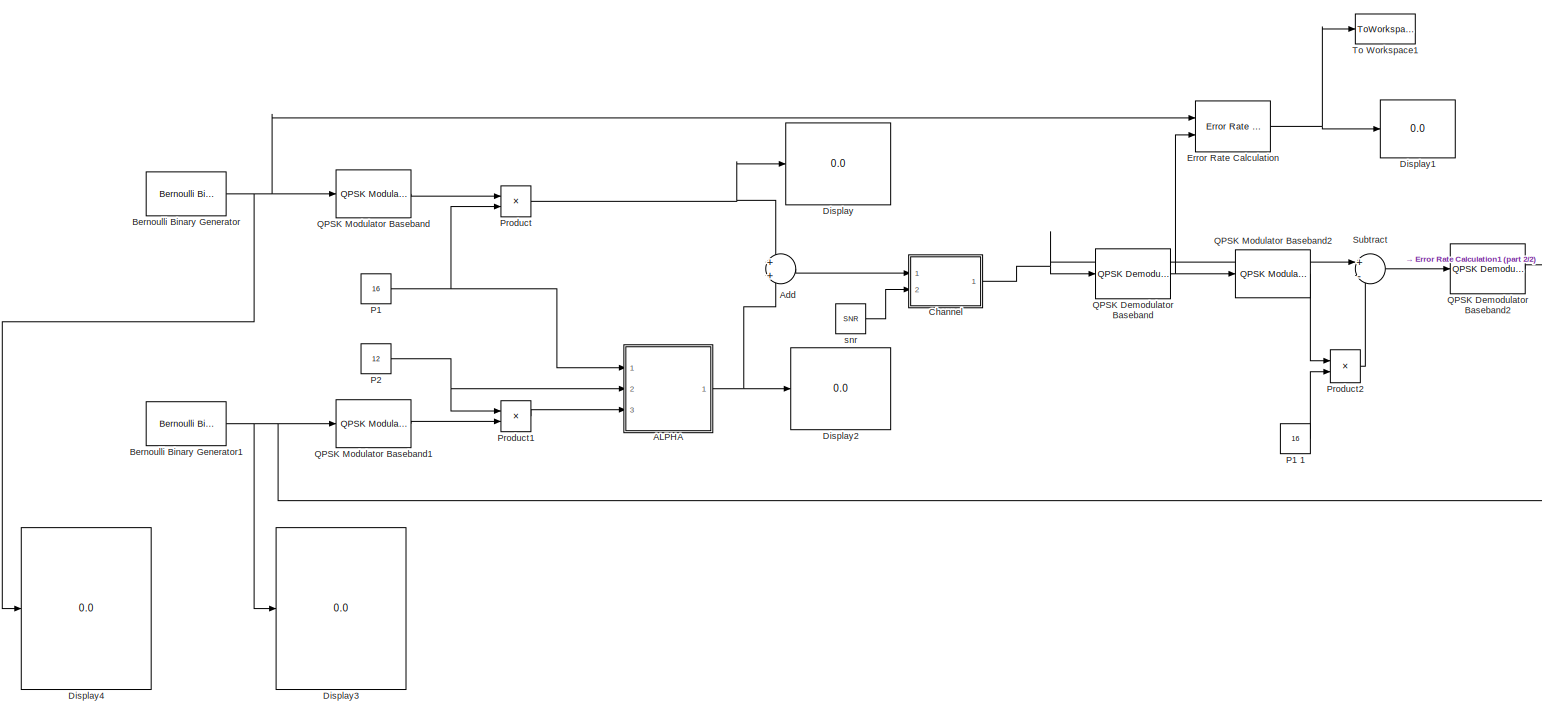
[diagram: root canvas - part 1/2, most of the canvas]
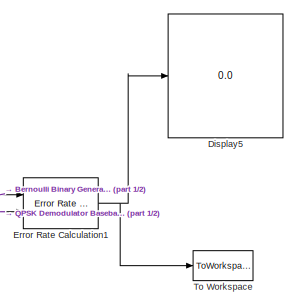
[diagram: root canvas - part 2/2, top right region]
MODEL slx_a5d9251261a1
KIND model
CONFIG AbsTol = auto
CONFIG EnableMultiTasking = on
CONFIG FixedStep = auto
CONFIG MaxStep = auto
CONFIG MinStep = auto
CONFIG RelTol = 1e-3
CONFIG SampleTimeConstraint = Unconstrained
CONFIG Solver = VariableStepAuto
CONFIG SolverName = VariableStepAuto
CONFIG StartTime = 0.0
CONFIG StopTime = 0
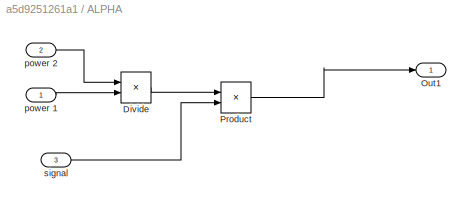
BLOCK [SubSystem] ALPHA 
  Ports = [3, 1]
  RequestExecContextInheritance = off
BLOCK [Product] ALPHA /Divide
  InputSameDT = off
  Inputs = */
  OutDataTypeStr = Inherit: Inherit via internal rule
  Ports = [2, 1]
  RndMeth = Floor
  SaturateOnIntegerOverflow = off
BLOCK [Outport] ALPHA /Out1
  IconDisplay = Port number
BLOCK [Product] ALPHA /Product
  InputSameDT = off
  OutDataTypeStr = Inherit: Inherit via internal rule
  Ports = [2, 1]
  RndMeth = Floor
  SaturateOnIntegerOverflow = off
BLOCK [Inport] ALPHA /power 1
  IconDisplay = Port number
BLOCK [Inport] ALPHA /power 2
  IconDisplay = Port number
  Port = 2
BLOCK [Inport] ALPHA /signal
  IconDisplay = Port number
  Port = 3
BLOCK [Sum] Add
  IconShape = round
  InputSameDT = off
  OutDataTypeStr = Inherit: Inherit via internal rule
  Ports = [2, 1]
  SaturateOnIntegerOverflow = off
BLOCK [Reference] Bernoulli Binary Generator  REF=commrandsrc3/Bernoulli Binary
Generator
  Ports = [0, 1]
  SourceBlock = commrandsrc3/Bernoulli Binary\nGenerator
  SourceProductBaseCode = CM
  SourceProductName = Communications Toolbox
  SourceType = Bernoulli Binary Generator
BLOCK [Reference] Bernoulli Binary Generator1  REF=commrandsrc3/Bernoulli Binary
Generator
  Ports = [0, 1]
  SourceBlock = commrandsrc3/Bernoulli Binary\nGenerator
  SourceProductBaseCode = CM
  SourceProductName = Communications Toolbox
  SourceType = Bernoulli Binary Generator
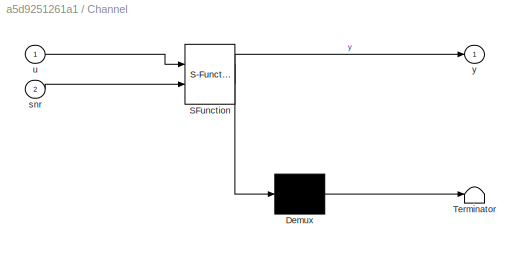
BLOCK [SubSystem] Channel 
  ErrorFcn = Stateflow.Translate.translate
  PermitHierarchicalResolution = ExplicitOnly
  Ports = [2, 1]
  RequestExecContextInheritance = off
  SFBlockType = MATLAB Function
  TreatAsAtomicUnit = on
BLOCK [Demux] Channel / Demux 
  Outputs = 1
  Ports = [1, 1]
BLOCK [S-Function] Channel / SFunction 
  EnableBusSupport = on
  FunctionName = sf_sfun
  PortCounts = [2 2]
  Ports = [2, 2]
  SFcnIsStateOwnerBlock = off
  SFunctionDeploymentMode = off
  Tag = Stateflow S-Function Power_test 4
BLOCK [Terminator] Channel / Terminator 
BLOCK [Inport] Channel /snr
  IconDisplay = Port number
  Port = 2
BLOCK [Inport] Channel /u
  IconDisplay = Port number
BLOCK [Outport] Channel /y
  IconDisplay = Port number
BLOCK [Display] Display
  Decimation = 1
  Ports = [1]
BLOCK [Display] Display1
  Decimation = 1
  Ports = [1]
BLOCK [Display] Display2
  Decimation = 1
  Ports = [1]
BLOCK [Display] Display3
  Decimation = 1
  Ports = [1]
BLOCK [Display] Display4
  Decimation = 1
  Ports = [1]
BLOCK [Display] Display5
  Decimation = 1
  Ports = [1]
BLOCK [Reference] Error Rate Calculation  REF=commsink2/Error Rate
Calculation
  Ports = [2, 1]
  SourceBlock = commsink2/Error Rate\nCalculation
  SourceProductBaseCode = CM
  SourceProductName = Communications Toolbox
  SourceType = Error Rate Calculation
BLOCK [Reference] Error Rate Calculation1  REF=commsink2/Error Rate
Calculation
  Ports = [2, 1]
  SourceBlock = commsink2/Error Rate\nCalculation
  SourceProductBaseCode = CM
  SourceProductName = Communications Toolbox
  SourceType = Error Rate Calculation
BLOCK [Constant] P1 
  Value = 16
BLOCK [Constant] P1 1
  Value = 16
BLOCK [Constant] P2
  Value = 12
BLOCK [Product] Product
  InputSameDT = off
  OutDataTypeStr = Inherit: Inherit via internal rule
  Ports = [2, 1]
  RndMeth = Floor
  SaturateOnIntegerOverflow = off
BLOCK [Product] Product1
  InputSameDT = off
  OutDataTypeStr = Inherit: Inherit via internal rule
  Ports = [2, 1]
  RndMeth = Floor
  SaturateOnIntegerOverflow = off
BLOCK [Product] Product2
  InputSameDT = off
  OutDataTypeStr = Inherit: Inherit via internal rule
  Ports = [2, 1]
  RndMeth = Floor
  SaturateOnIntegerOverflow = off
BLOCK [Reference] QPSK Demodulator Baseband  REF=commdigbbndpm3/QPSK
Demodulator
Baseband
  Ports = [1, 1]
  SourceBlock = commdigbbndpm3/QPSK\nDemodulator\nBaseband
  SourceProductBaseCode = CM
  SourceProductName = Communications Toolbox
  SourceType = QPSK Demodulator Baseband
BLOCK [Reference] QPSK Demodulator Baseband2  REF=commdigbbndpm3/QPSK
Demodulator
Baseband
  Ports = [1, 1]
  SourceBlock = commdigbbndpm3/QPSK\nDemodulator\nBaseband
  SourceProductBaseCode = CM
  SourceProductName = Communications Toolbox
  SourceType = QPSK Demodulator Baseband
BLOCK [Reference] QPSK Modulator Baseband  REF=commdigbbndpm3/QPSK
Modulator
Baseband
  Ports = [1, 1]
  SourceBlock = commdigbbndpm3/QPSK\nModulator\nBaseband
  SourceProductBaseCode = CM
  SourceProductName = Communications Toolbox
  SourceType = QPSK Modulator Baseband
BLOCK [Reference] QPSK Modulator Baseband1  REF=commdigbbndpm3/QPSK
Modulator
Baseband
  Ports = [1, 1]
  SourceBlock = commdigbbndpm3/QPSK\nModulator\nBaseband
  SourceProductBaseCode = CM
  SourceProductName = Communications Toolbox
  SourceType = QPSK Modulator Baseband
BLOCK [Reference] QPSK Modulator Baseband2  REF=commdigbbndpm3/QPSK
Modulator
Baseband
  Ports = [1, 1]
  SourceBlock = commdigbbndpm3/QPSK\nModulator\nBaseband
  SourceProductBaseCode = CM
  SourceProductName = Communications Toolbox
  SourceType = QPSK Modulator Baseband
BLOCK [Sum] Subtract
  IconShape = round
  InputSameDT = off
  Inputs = +-
  OutDataTypeStr = Inherit: Inherit via internal rule
  Ports = [2, 1]
  SaturateOnIntegerOverflow = off
BLOCK [ToWorkspace] To Workspace
  FixptAsFi = on
  MaxDataPoints = inf
  Ports = [1]
  SampleTime = -1
  SaveFormat = Timeseries
  VariableName = UE2
BLOCK [ToWorkspace] To Workspace1
  FixptAsFi = on
  MaxDataPoints = inf
  Ports = [1]
  SampleTime = -1
  SaveFormat = Timeseries
  VariableName = UE1
BLOCK [Constant] snr 
  Value = SNR
LINE ALPHA /Divide:1 -> ALPHA /Product:1
LINE ALPHA /Product:1 -> ALPHA /Out1:1
LINE ALPHA /power 1:1 -> ALPHA /Divide:2
LINE ALPHA /power 2:1 -> ALPHA /Divide:1
LINE ALPHA /signal:1 -> ALPHA /Product:2
NET ALPHA :1 -> Add:2, Display2:1
LINE Add:1 -> Channel :1
NET Bernoulli Binary Generator1:1 -> Display3:1, Error Rate Calculation1:1, QPSK Modulator Baseband1:1
NET Bernoulli Binary Generator:1 -> Display4:1, Error Rate Calculation:1, QPSK Modulator Baseband:1
NET Channel :1 -> QPSK Demodulator Baseband:1, Subtract:1
NET Error Rate Calculation1:1 -> Display5:1, To Workspace:1
NET Error Rate Calculation:1 -> Display1:1, To Workspace1:1
LINE P1 1:1 -> Product2:2
NET P1 :1 -> ALPHA :1, Product:2
NET P2:1 -> ALPHA :2, Product1:1
LINE Product1:1 -> ALPHA :3
LINE Product2:1 -> Subtract:2
NET Product:1 -> Add:1, Display:1
LINE QPSK Demodulator Baseband2:1 -> Error Rate Calculation1:2
NET QPSK Demodulator Baseband:1 -> Error Rate Calculation:2, QPSK Modulator Baseband2:1
LINE QPSK Modulator Baseband1:1 -> Product1:2
LINE QPSK Modulator Baseband2:1 -> Product2:1
LINE QPSK Modulator Baseband:1 -> Product:1
LINE Subtract:1 -> QPSK Demodulator Baseband2:1
LINE snr :1 -> Channel :2
note: NET lines group one-source signal fan-out (src -> all destinations, sorted); 1:1 wires keep LINE
CHART Channel
 states=1 transitions=1
  STATE_LABEL 'eML_blk_kernel()'
  STATE_LABEL 'SCRIPT:\nfunction y = fcn(u,snr)\n\nn=length(u);\ny=zeros(n,1)+1j*zeros(n,1);\nh= rand(n,1) + 1j*rand(n,1);\nnoise = rand(n,1) + 1j*rand(n,1);\nn_var = 10^(-snr/20);\ny=(h.*u)+(noise)*sqrt(n_var);    \ny=y./h;\nend'
